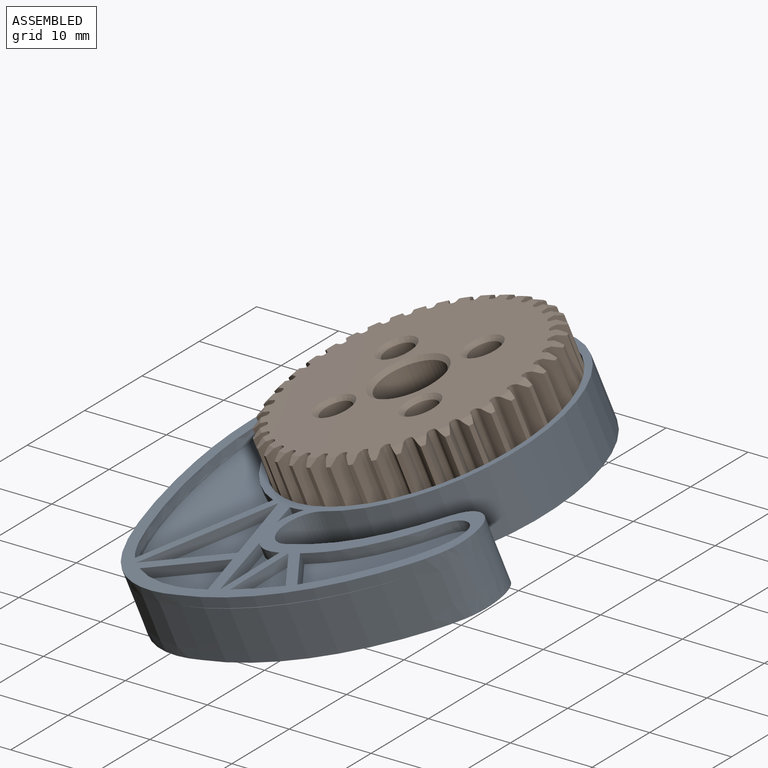
[diagram: assembled view]
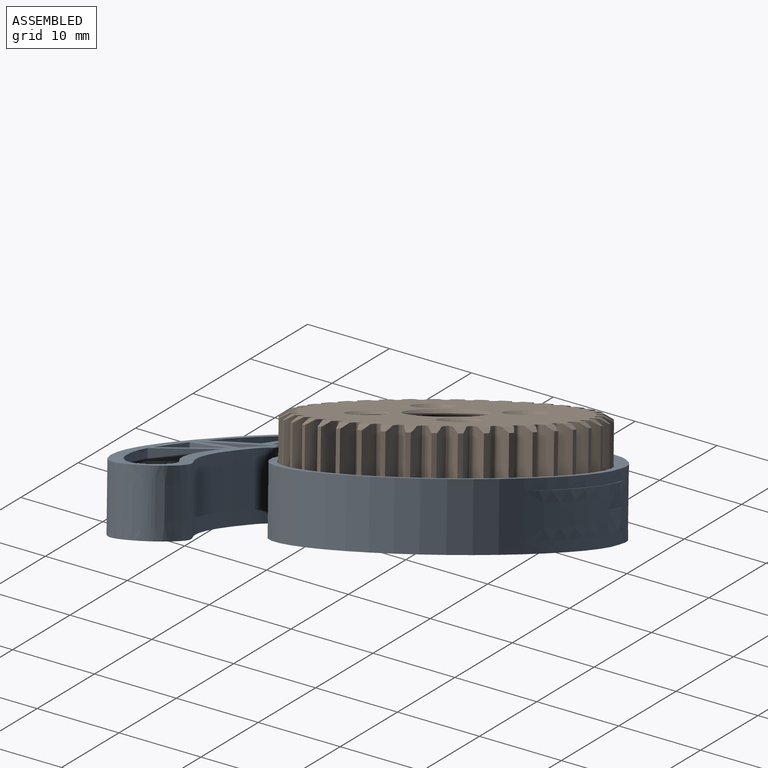
[diagram: assembled view, second angle]
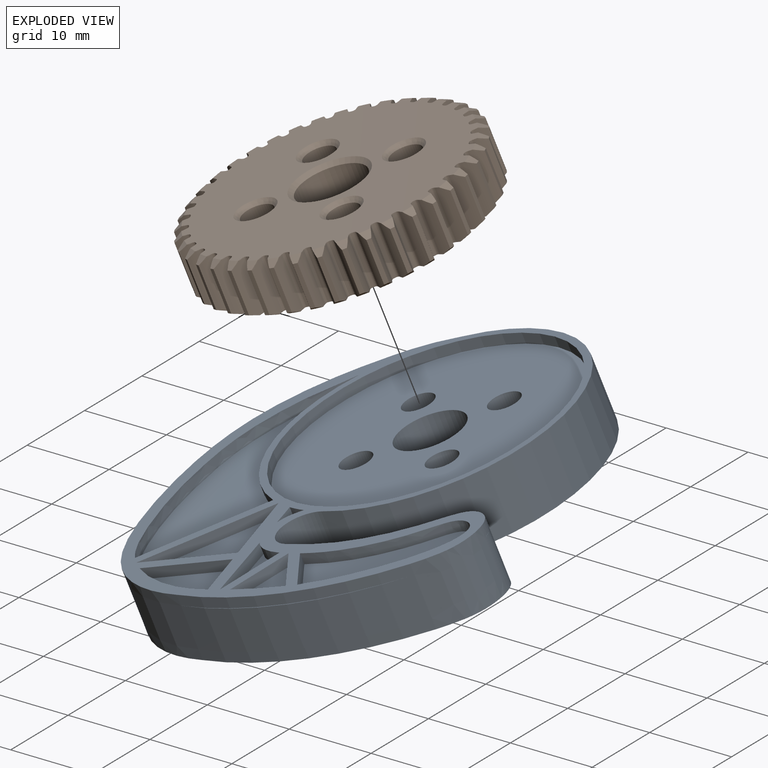
[diagram: exploded view]
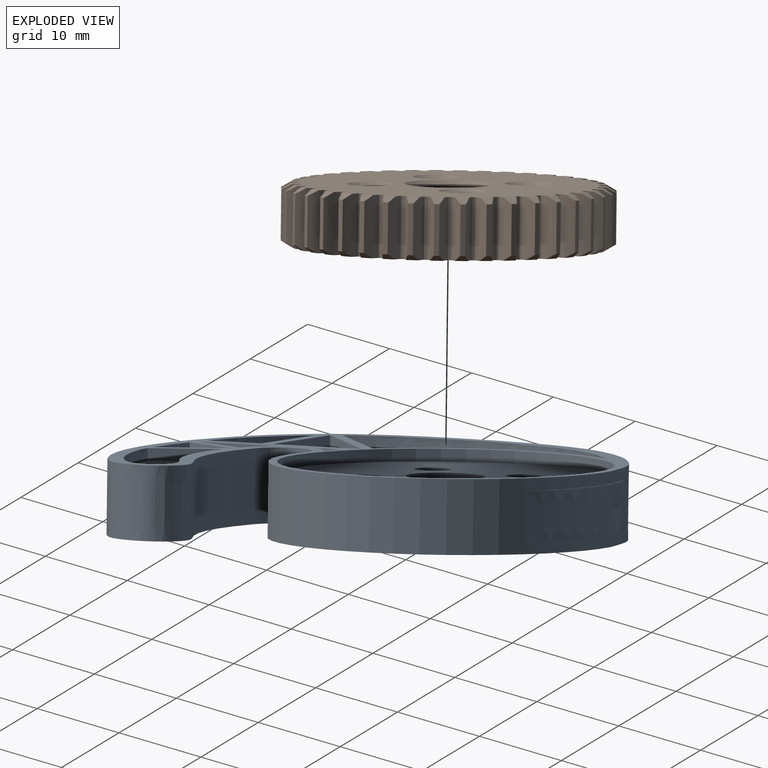
[diagram: exploded view, second angle]
ASSEMBLY  parts=2 mates=3
PART A: 94 faces, bbox 52.8x48.1x7.6 mm
  f0: extruded ~18.96x12.44mm, area 51.4mm2, adj f5,f40,f88
  f1: extruded ~6.91x1.27mm, area 8.8mm2, adj f4,f40,f68,f87
  f2: extruded ~18.96x12.44mm, area 51.4mm2, adj f7,f39,f85
  f3: extruded ~6.91x1.27mm, area 8.8mm2, adj f6,f39,f65,f86
  f4: plane 7.05x6.97mm, normal (0,0,-1), area 24mm2, adj f1,f68,f87
  f5: plane 19.16x12.62mm, normal (0,0,-1), area 105.2mm2, adj f0,f88
  f6: plane 7.05x6.97mm, normal (0,0,1), area 24mm2, adj f3,f65,f86
  f7: plane 19.16x12.62mm, normal (0,0,1), area 105.2mm2, adj f2,f85
  f8: extruded ~12.25x4.13mm, area 16.7mm2, adj f13,f40,f73,f74
  f9: extruded ~4.11x1.96mm, area 6mm2, adj f14,f40,f67,f75
  f10: extruded ~12.25x4.13mm, area 16.7mm2, adj f16,f39,f81,f82
  f11: extruded ~4.11x1.96mm, area 6mm2, adj f17,f39,f66,f83
  f12: plane 12.12x11.56mm, normal (0,0,-1), area 60.3mm2, adj f72,f77,f78
  f13: plane 12.34x5.93mm, normal (0,0,-1), area 42.7mm2, adj f8,f73,f74
  f14: plane 9.18x4.24mm, normal (0,0,-1), area 15.7mm2, adj f9,f67,f75
  f15: plane 12.12x11.56mm, normal (0,0,1), area 60.3mm2, adj f69,f79,f80
  f16: plane 12.34x5.93mm, normal (0,0,1), area 42.7mm2, adj f10,f81,f82
  f17: plane 9.18x4.24mm, normal (0,0,1), area 15.7mm2, adj f11,f66,f83
  f18: extruded ~35.53x7.47mm, area 48.8mm2, adj f20,f22,f40,f71
  f19: extruded ~35.53x7.47mm, area 48.8mm2, adj f21,f23,f39,f70
  f20: plane 35.63x14.46mm, normal (0,0,-1), area 215.8mm2, adj f18,f22,f71
  f21: plane 35.63x14.46mm, normal (0,0,1), area 215.8mm2, adj f19,f23,f70
  f22: cylinder r=17.78mm len=24.31mm, axis (0,0,-1), area 35.7mm2, adj f18,f20,f40,f71
  f23: cylinder r=17.78mm len=24.31mm, axis (0,0,-1), area 35.7mm2, adj f19,f21,f39,f70
  f24: extruded ~2.34x1.81mm, area 3.8mm2, adj f26,f32,f40,f76
  f25: extruded ~2.34x1.81mm, area 3.8mm2, adj f27,f37,f39,f84
  f26: plane 2.96x2.38mm, normal (0,0,-1), area 2.7mm2, adj f24,f32,f76
  f27: plane 2.96x2.38mm, normal (0,0,1), area 2.7mm2, adj f25,f37,f84
  f28: cylinder r=34.5mm len=26.65mm, axis (0,0,-1), area 142.7mm2, adj f29,f30,f34,f36
  f29: plane 26.65x6.58mm, normal (0,0,1), area 1.7mm2, adj f28,f35
  f30: plane 26.65x6.58mm, normal (0,0,-1), area 1.7mm2, adj f28,f31
  f31: cylinder r=35.56mm len=26.65mm, axis (0,0,-1), area 35.6mm2, adj f30,f34,f36,f40
  f32: cylinder r=17.78mm len=2.32mm, axis (0,0,-1), area 3mm2, adj f24,f26,f40,f76
  f33: cylinder r=16.89mm len=33.78mm, axis (0,0,-1), area 134.8mm2, adj f40,f64
  f34: extruded ~50.11x17.25mm, area 357.3mm2, adj f28,f31,f35,f39,f40,f50,f51,f52
  f35: cylinder r=35.56mm len=26.65mm, axis (0,0,-1), area 35.6mm2, adj f29,f34,f36,f39
  f36: extruded ~10.2x8.61mm, area 135.8mm2, adj f28,f31,f35,f39,f40,f42,f43,f44
  f37: cylinder r=17.78mm len=2.32mm, axis (0,0,-1), area 3mm2, adj f25,f27,f39,f84
  f38: cylinder r=16.89mm len=33.78mm, axis (0,0,-1), area 134.8mm2, adj f39,f63
  f39: plane 52.26x48.14mm, normal (0,0,1), area 385.7mm2, adj f2,f3,f10,f11,f19,f23,f25,f34
  f40: plane 52.26x48.14mm, normal (0,0,-1), area 385.7mm2, adj f0,f1,f8,f9,f18,f22,f24,f31
  f41: cylinder r=3.17mm len=7.62mm, axis (0,0,-1), area 76.7mm2, adj f39,f40,f42,f50
  f42: cylinder r=24.13mm len=14.53mm, axis (0,0,-1), area 115.9mm2, adj f36,f39,f40,f41
  f43: plane 1.02x0.31mm, normal (0,0,-1), area 0mm2, adj f36,f45
  f44: plane 1.02x0.31mm, normal (0,0,1), area 0mm2, adj f36,f45
  f45: extruded ~5.08x1mm, area 5.3mm2, adj f36,f43,f44
  f46: plane 1.41x0.52mm, normal (0,0,-1), area 0mm2, adj f36,f48
  f47: plane 1.41x0.52mm, normal (0,0,1), area 0mm2, adj f36,f48
  f48: extruded ~5.08x1.37mm, area 7.5mm2, adj f36,f46,f47
  f49: extruded ~5.08x0.15mm, area 0.9mm2, adj f36
  f50: cylinder r=17.78mm len=35.56mm, axis (0,0,-1), area 407mm2, adj f34,f39,f40,f41,f51,f52,f53
  f51: plane 17.96x3.41mm, normal (0,0,1), area 2mm2, adj f34,f50,f53
  f52: plane 17.96x3.41mm, normal (0,0,-1), area 2mm2, adj f34,f50,f53
  f53: extruded ~17.6x5.08mm, area 93.5mm2, adj f34,f50,f51,f52
  f54: plane 2.44x2.24mm, normal (0,0,-1), area 0mm2, adj f34,f56
  f55: plane 2.44x2.24mm, normal (0,0,1), area 0mm2, adj f34,f56
  f56: extruded ~5.08x2.42mm, area 16.7mm2, adj f34,f54,f55
  f57: plane 9.27x5.08mm, normal (0,0,-1), area 0.2mm2, adj f34,f59
  f58: plane 9.27x5.08mm, normal (0,0,1), area 0.2mm2, adj f34,f59
  f59: extruded ~9.01x5.08mm, area 52.3mm2, adj f34,f57,f58
  f60: plane 12.29x5.49mm, normal (0,0,-1), area 1.1mm2, adj f34,f62
  f61: plane 12.29x5.49mm, normal (0,0,1), area 1.1mm2, adj f34,f62
  f62: extruded ~11.8x5.08mm, area 66.3mm2, adj f34,f60,f61
  f63: plane 33.78x33.78mm, normal (0,0,1), area 802.8mm2, adj f38,f89,f90,f91,f92,f93
  f64: plane 33.78x33.78mm, normal (0,0,-1), area 802.8mm2, adj f33,f89,f90,f91,f92,f93
  f65: plane 7.02x2.48mm, normal (0.33,0.94,0), area 9.5mm2, adj f3,f6,f39,f86
  f66: plane 7.16x2.53mm, normal (-0.33,-0.94,0), area 9.6mm2, adj f11,f17,f39,f83
  f67: plane 7.16x2.53mm, normal (-0.33,-0.94,0), area 9.6mm2, adj f9,f14,f40,f75
  f68: plane 7.02x2.48mm, normal (0.33,0.94,0), area 9.5mm2, adj f1,f4,f40,f87
  f69: plane 11.56x10.23mm, normal (0.66,0.75,0), area 19.6mm2, adj f15,f39,f79,f80
  f70: plane 11.22x9.93mm, normal (-0.66,-0.75,0), area 19mm2, adj f19,f21,f23,f39
  f71: plane 11.22x9.93mm, normal (-0.66,-0.75,0), area 19mm2, adj f18,f20,f22,f40
  f72: plane 11.56x10.23mm, normal (0.66,0.75,0), area 19.6mm2, adj f12,f40,f77,f78
  f73: plane 5.89x1.27mm, normal (0.19,-0.98,0), area 7.6mm2, adj f8,f13,f40,f74
  f74: plane 11.1x1.75mm, normal (0.99,0.16,0), area 14.3mm2, adj f8,f13,f40,f73
  f75: plane 9.12x1.58mm, normal (-0.17,0.99,0), area 11.8mm2, adj f9,f14,f40,f67
  f76: plane 2.9x1.27mm, normal (-0.17,0.99,0), area 3.7mm2, adj f24,f26,f32,f40
  f77: plane 9.65x1.89mm, normal (0.19,-0.98,0), area 12.5mm2, adj f12,f40,f72,f78
  f78: plane 12.12x1.91mm, normal (-0.99,-0.16,0), area 15.6mm2, adj f12,f40,f72,f77
  f79: plane 9.65x1.89mm, normal (0.19,-0.98,0), area 12.5mm2, adj f15,f39,f69,f80
  f80: plane 12.12x1.91mm, normal (-0.99,-0.16,0), area 15.6mm2, adj f15,f39,f69,f79
  f81: plane 11.1x1.75mm, normal (0.99,0.16,0), area 14.3mm2, adj f10,f16,f39,f82
  f82: plane 5.89x1.27mm, normal (0.19,-0.98,0), area 7.6mm2, adj f10,f16,f39,f81
  f83: plane 9.12x1.58mm, normal (-0.17,0.99,0), area 11.8mm2, adj f11,f17,f39,f66
  f84: plane 2.9x1.27mm, normal (-0.17,0.99,0), area 3.7mm2, adj f25,f27,f37,f39
  f85: plane 6.06x4.23mm, normal (-0.57,0.82,0), area 9.4mm2, adj f2,f7,f39
  f86: plane 6.36x4.43mm, normal (0.57,-0.82,0), area 9.8mm2, adj f3,f6,f39,f65
  f87: plane 6.36x4.43mm, normal (0.57,-0.82,0), area 9.8mm2, adj f1,f4,f40,f68
  f88: plane 6.06x4.23mm, normal (-0.57,0.82,0), area 9.4mm2, adj f0,f5,f40
  f89: cylinder r=1.85mm len=5.08mm, axis (0,0,-1), area 59.2mm2, adj f63,f64
  f90: cylinder r=1.85mm len=5.08mm, axis (0,0,-1), area 59.2mm2, adj f63,f64
  f91: cylinder r=4mm len=8mm, axis (0,0,-1), area 127.7mm2, adj f63,f64
  f92: cylinder r=1.85mm len=5.08mm, axis (0,0,-1), area 59.2mm2, adj f63,f64
  f93: cylinder r=1.85mm len=5.08mm, axis (0,0,-1), area 59.2mm2, adj f63,f64
PART B: 177 faces, bbox 6.4x33.6x33.6 mm
  f0: cone r=2.35mm half-angle=45deg, axis (-1,0,0), area 9.3mm2, adj f11,f16
  f1: cone r=1.85mm half-angle=45deg, axis (1,0,0), area 9.3mm2, adj f11,f15
  f2: cone r=4mm half-angle=45deg, axis (-1,0,0), area 18.9mm2, adj f14,f16
  f3: cone r=4mm half-angle=45deg, axis (1,0,0), area 18.9mm2, adj f14,f15
  f4: cone r=2.35mm half-angle=45deg, axis (-1,0,0), area 9.3mm2, adj f10,f16
  f5: cone r=1.85mm half-angle=45deg, axis (1,0,0), area 9.3mm2, adj f10,f15
  f6: cone r=2.35mm half-angle=45deg, axis (-1,0,0), area 9.3mm2, adj f13,f16
  f7: cone r=1.85mm half-angle=45deg, axis (1,0,0), area 9.3mm2, adj f13,f15
  f8: cone r=2.35mm half-angle=45deg, axis (-1,0,0), area 9.3mm2, adj f12,f16
  f9: cone r=1.85mm half-angle=45deg, axis (1,0,0), area 9.3mm2, adj f12,f15
  f10: cylinder r=1.85mm len=5.35mm, axis (1,0,0), area 62.2mm2, adj f4,f5
  f11: cylinder r=1.85mm len=5.35mm, axis (1,0,0), area 62.2mm2, adj f0,f1
  f12: cylinder r=1.85mm len=5.35mm, axis (1,0,0), area 62.2mm2, adj f8,f9
  f13: cylinder r=1.85mm len=5.35mm, axis (1,0,0), area 62.2mm2, adj f6,f7
  f14: cylinder r=4mm len=8mm, axis (-1,0,0), area 134.5mm2, adj f2,f3
  f15: plane 31.63x31.63mm, normal (1,0,0), area 608.9mm2, adj f1,f3,f5,f7,f9,f17,f20,f23
  f16: plane 31.63x31.63mm, normal (-1,0,0), area 637.8mm2, adj f0,f2,f4,f6,f8,f19,f22,f25
  f17: cone r=15.8mm half-angle=60deg, axis (-1,0,0), area 1.1mm2, adj f15,f134,f137,f176
  f18: cylinder r=16.8mm len=5.2mm, axis (-1,0,0), area 2.8mm2, adj f19,f20,f175,f176
  f19: cone r=15.8mm half-angle=60deg, axis (1,0,0), area 1.1mm2, adj f16,f18,f175,f176
  f20: cone r=15.8mm half-angle=60deg, axis (-1,0,0), area 1.1mm2, adj f15,f18,f175,f176
  f21: cylinder r=16.8mm len=5.2mm, axis (-1,0,0), area 2.8mm2, adj f22,f23,f174,f175
  f22: cone r=15.8mm half-angle=60deg, axis (1,0,0), area 1.1mm2, adj f16,f21,f174,f175
  f23: cone r=15.8mm half-angle=60deg, axis (-1,0,0), area 1.1mm2, adj f15,f21,f174,f175
  f24: cylinder r=16.8mm len=5.2mm, axis (-1,0,0), area 2.8mm2, adj f25,f26,f173,f174
  f25: cone r=15.8mm half-angle=60deg, axis (1,0,0), area 1.1mm2, adj f16,f24,f173,f174
  f26: cone r=15.8mm half-angle=60deg, axis (-1,0,0), area 1.1mm2, adj f15,f24,f173,f174
  f27: cylinder r=16.8mm len=5.2mm, axis (-1,0,0), area 2.8mm2, adj f28,f29,f172,f173
  f28: cone r=15.8mm half-angle=60deg, axis (1,0,0), area 1.1mm2, adj f16,f27,f172,f173
  f29: cone r=15.8mm half-angle=60deg, axis (-1,0,0), area 1.1mm2, adj f15,f27,f172,f173
  f30: cylinder r=16.8mm len=5.2mm, axis (-1,0,0), area 2.8mm2, adj f31,f32,f171,f172
  f31: cone r=15.8mm half-angle=60deg, axis (1,0,0), area 1.1mm2, adj f16,f30,f171,f172
  f32: cone r=15.8mm half-angle=60deg, axis (-1,0,0), area 1.1mm2, adj f15,f30,f171,f172
  f33: cylinder r=16.8mm len=5.2mm, axis (-1,0,0), area 2.8mm2, adj f34,f35,f170,f171
  f34: cone r=15.8mm half-angle=60deg, axis (1,0,0), area 1.1mm2, adj f16,f33,f170,f171
  f35: cone r=15.8mm half-angle=60deg, axis (-1,0,0), area 1.1mm2, adj f15,f33,f170,f171
  f36: cylinder r=16.8mm len=5.2mm, axis (-1,0,0), area 2.8mm2, adj f37,f38,f169,f170
  f37: cone r=15.8mm half-angle=60deg, axis (1,0,0), area 1.1mm2, adj f16,f36,f169,f170
  f38: cone r=15.8mm half-angle=60deg, axis (-1,0,0), area 1.1mm2, adj f15,f36,f169,f170
  f39: cylinder r=16.8mm len=5.2mm, axis (-1,0,0), area 2.8mm2, adj f40,f41,f168,f169
  f40: cone r=15.8mm half-angle=60deg, axis (1,0,0), area 1.1mm2, adj f16,f39,f168,f169
  f41: cone r=15.8mm half-angle=60deg, axis (-1,0,0), area 1.1mm2, adj f15,f39,f168,f169
  f42: cylinder r=16.8mm len=5.2mm, axis (-1,0,0), area 2.8mm2, adj f43,f44,f167,f168
  f43: cone r=15.8mm half-angle=60deg, axis (1,0,0), area 1.1mm2, adj f16,f42,f167,f168
  f44: cone r=15.8mm half-angle=60deg, axis (-1,0,0), area 1.1mm2, adj f15,f42,f167,f168
  f45: cylinder r=16.8mm len=5.2mm, axis (-1,0,0), area 2.8mm2, adj f46,f47,f166,f167
  f46: cone r=15.8mm half-angle=60deg, axis (1,0,0), area 1.1mm2, adj f16,f45,f166,f167
  f47: cone r=15.8mm half-angle=60deg, axis (-1,0,0), area 1.1mm2, adj f15,f45,f166,f167
  f48: cylinder r=16.8mm len=5.2mm, axis (-1,0,0), area 2.8mm2, adj f49,f50,f165,f166
  f49: cone r=15.8mm half-angle=60deg, axis (1,0,0), area 1.1mm2, adj f16,f48,f165,f166
  f50: cone r=15.8mm half-angle=60deg, axis (-1,0,0), area 1.1mm2, adj f15,f48,f165,f166
  f51: cylinder r=16.8mm len=5.2mm, axis (-1,0,0), area 2.8mm2, adj f52,f53,f164,f165
  f52: cone r=15.8mm half-angle=60deg, axis (1,0,0), area 1.1mm2, adj f16,f51,f164,f165
  f53: cone r=15.8mm half-angle=60deg, axis (-1,0,0), area 1.1mm2, adj f15,f51,f164,f165
  f54: cylinder r=16.8mm len=5.2mm, axis (-1,0,0), area 2.8mm2, adj f55,f56,f163,f164
  f55: cone r=15.8mm half-angle=60deg, axis (1,0,0), area 1.1mm2, adj f16,f54,f163,f164
  f56: cone r=15.8mm half-angle=60deg, axis (-1,0,0), area 1.1mm2, adj f15,f54,f163,f164
  f57: cylinder r=16.8mm len=5.2mm, axis (-1,0,0), area 2.8mm2, adj f58,f59,f162,f163
  f58: cone r=15.8mm half-angle=60deg, axis (1,0,0), area 1.1mm2, adj f16,f57,f162,f163
  f59: cone r=15.8mm half-angle=60deg, axis (-1,0,0), area 1.1mm2, adj f15,f57,f162,f163
  f60: cylinder r=16.8mm len=5.2mm, axis (-1,0,0), area 2.8mm2, adj f61,f62,f161,f162
  f61: cone r=15.8mm half-angle=60deg, axis (1,0,0), area 1.1mm2, adj f16,f60,f161,f162
  f62: cone r=15.8mm half-angle=60deg, axis (-1,0,0), area 1.1mm2, adj f15,f60,f161,f162
  f63: cylinder r=16.8mm len=5.2mm, axis (-1,0,0), area 2.8mm2, adj f64,f65,f160,f161
  f64: cone r=15.8mm half-angle=60deg, axis (1,0,0), area 1.1mm2, adj f16,f63,f160,f161
  f65: cone r=15.8mm half-angle=60deg, axis (-1,0,0), area 1.1mm2, adj f15,f63,f160,f161
  f66: cylinder r=16.8mm len=5.2mm, axis (-1,0,0), area 2.8mm2, adj f67,f68,f159,f160
  f67: cone r=15.8mm half-angle=60deg, axis (1,0,0), area 1.1mm2, adj f16,f66,f159,f160
  f68: cone r=15.8mm half-angle=60deg, axis (-1,0,0), area 1.1mm2, adj f15,f66,f159,f160
  f69: cylinder r=16.8mm len=5.2mm, axis (-1,0,0), area 2.8mm2, adj f70,f71,f158,f159
  f70: cone r=15.8mm half-angle=60deg, axis (1,0,0), area 1.1mm2, adj f16,f69,f158,f159
  f71: cone r=15.8mm half-angle=60deg, axis (-1,0,0), area 1.1mm2, adj f15,f69,f158,f159
  f72: cylinder r=16.8mm len=5.2mm, axis (-1,0,0), area 2.8mm2, adj f73,f74,f157,f158
  f73: cone r=15.8mm half-angle=60deg, axis (1,0,0), area 1.1mm2, adj f16,f72,f157,f158
  f74: cone r=15.8mm half-angle=60deg, axis (-1,0,0), area 1.1mm2, adj f15,f72,f157,f158
  f75: cylinder r=16.8mm len=5.2mm, axis (-1,0,0), area 2.8mm2, adj f76,f77,f156,f157
  f76: cone r=15.8mm half-angle=60deg, axis (1,0,0), area 1.1mm2, adj f16,f75,f156,f157
  f77: cone r=15.8mm half-angle=60deg, axis (-1,0,0), area 1.1mm2, adj f15,f75,f156,f157
  f78: cylinder r=16.8mm len=5.2mm, axis (-1,0,0), area 2.8mm2, adj f79,f80,f155,f156
  f79: cone r=15.8mm half-angle=60deg, axis (1,0,0), area 1.1mm2, adj f16,f78,f155,f156
  f80: cone r=15.8mm half-angle=60deg, axis (-1,0,0), area 1.1mm2, adj f15,f78,f155,f156
  f81: cylinder r=16.8mm len=5.2mm, axis (-1,0,0), area 2.8mm2, adj f82,f83,f154,f155
  f82: cone r=15.8mm half-angle=60deg, axis (1,0,0), area 1.1mm2, adj f16,f81,f154,f155
  f83: cone r=15.8mm half-angle=60deg, axis (-1,0,0), area 1.1mm2, adj f15,f81,f154,f155
  f84: cylinder r=16.8mm len=5.2mm, axis (-1,0,0), area 2.8mm2, adj f85,f86,f153,f154
  f85: cone r=15.8mm half-angle=60deg, axis (1,0,0), area 1.1mm2, adj f16,f84,f153,f154
  f86: cone r=15.8mm half-angle=60deg, axis (-1,0,0), area 1.1mm2, adj f15,f84,f153,f154
  f87: cylinder r=16.8mm len=5.2mm, axis (-1,0,0), area 2.8mm2, adj f88,f89,f152,f153
  f88: cone r=15.8mm half-angle=60deg, axis (1,0,0), area 1.1mm2, adj f16,f87,f152,f153
  f89: cone r=15.8mm half-angle=60deg, axis (-1,0,0), area 1.1mm2, adj f15,f87,f152,f153
  f90: cylinder r=16.8mm len=5.2mm, axis (-1,0,0), area 2.8mm2, adj f91,f92,f151,f152
  f91: cone r=15.8mm half-angle=60deg, axis (1,0,0), area 1.1mm2, adj f16,f90,f151,f152
  f92: cone r=15.8mm half-angle=60deg, axis (-1,0,0), area 1.1mm2, adj f15,f90,f151,f152
  f93: cylinder r=16.8mm len=5.2mm, axis (-1,0,0), area 2.8mm2, adj f94,f95,f150,f151
  f94: cone r=15.8mm half-angle=60deg, axis (1,0,0), area 1.1mm2, adj f16,f93,f150,f151
  f95: cone r=15.8mm half-angle=60deg, axis (-1,0,0), area 1.1mm2, adj f15,f93,f150,f151
  f96: cylinder r=16.8mm len=5.2mm, axis (-1,0,0), area 2.8mm2, adj f97,f98,f149,f150
  f97: cone r=15.8mm half-angle=60deg, axis (1,0,0), area 1.1mm2, adj f16,f96,f149,f150
  f98: cone r=15.8mm half-angle=60deg, axis (-1,0,0), area 1.1mm2, adj f15,f96,f149,f150
  f99: cylinder r=16.8mm len=5.2mm, axis (-1,0,0), area 2.8mm2, adj f100,f101,f148,f149
  f100: cone r=15.8mm half-angle=60deg, axis (1,0,0), area 1.1mm2, adj f16,f99,f148,f149
  f101: cone r=15.8mm half-angle=60deg, axis (-1,0,0), area 1.1mm2, adj f15,f99,f148,f149
  f102: cylinder r=16.8mm len=5.2mm, axis (-1,0,0), area 2.8mm2, adj f103,f104,f147,f148
  f103: cone r=15.8mm half-angle=60deg, axis (1,0,0), area 1.1mm2, adj f16,f102,f147,f148
  f104: cone r=15.8mm half-angle=60deg, axis (-1,0,0), area 1.1mm2, adj f15,f102,f147,f148
  f105: cylinder r=16.8mm len=5.2mm, axis (-1,0,0), area 2.8mm2, adj f106,f107,f146,f147
  f106: cone r=15.8mm half-angle=60deg, axis (1,0,0), area 1.1mm2, adj f16,f105,f146,f147
  f107: cone r=15.8mm half-angle=60deg, axis (-1,0,0), area 1.1mm2, adj f15,f105,f146,f147
  f108: cylinder r=16.8mm len=5.2mm, axis (-1,0,0), area 2.8mm2, adj f109,f110,f145,f146
  f109: cone r=15.8mm half-angle=60deg, axis (1,0,0), area 1.1mm2, adj f16,f108,f145,f146
  f110: cone r=15.8mm half-angle=60deg, axis (-1,0,0), area 1.1mm2, adj f15,f108,f145,f146
  f111: cylinder r=16.8mm len=5.2mm, axis (-1,0,0), area 2.8mm2, adj f112,f113,f144,f145
  f112: cone r=15.8mm half-angle=60deg, axis (1,0,0), area 1.1mm2, adj f16,f111,f144,f145
  f113: cone r=15.8mm half-angle=60deg, axis (-1,0,0), area 1.1mm2, adj f15,f111,f144,f145
  f114: cylinder r=16.8mm len=5.2mm, axis (-1,0,0), area 2.8mm2, adj f115,f116,f143,f144
  f115: cone r=15.8mm half-angle=60deg, axis (1,0,0), area 1.1mm2, adj f16,f114,f143,f144
  f116: cone r=15.8mm half-angle=60deg, axis (-1,0,0), area 1.1mm2, adj f15,f114,f143,f144
  f117: cylinder r=16.8mm len=5.2mm, axis (-1,0,0), area 2.8mm2, adj f118,f119,f142,f143
  f118: cone r=15.8mm half-angle=60deg, axis (1,0,0), area 1.1mm2, adj f16,f117,f142,f143
  f119: cone r=15.8mm half-angle=60deg, axis (-1,0,0), area 1.1mm2, adj f15,f117,f142,f143
  f120: cylinder r=16.8mm len=5.2mm, axis (-1,0,0), area 2.8mm2, adj f121,f122,f141,f142
  f121: cone r=15.8mm half-angle=60deg, axis (1,0,0), area 1.1mm2, adj f16,f120,f141,f142
  f122: cone r=15.8mm half-angle=60deg, axis (-1,0,0), area 1.1mm2, adj f15,f120,f141,f142
  f123: cylinder r=16.8mm len=5.2mm, axis (-1,0,0), area 2.8mm2, adj f124,f125,f140,f141
  f124: cone r=15.8mm half-angle=60deg, axis (1,0,0), area 1.1mm2, adj f16,f123,f140,f141
  f125: cone r=15.8mm half-angle=60deg, axis (-1,0,0), area 1.1mm2, adj f15,f123,f140,f141
  f126: cylinder r=16.8mm len=5.2mm, axis (-1,0,0), area 2.8mm2, adj f127,f128,f139,f140
  f127: cone r=15.8mm half-angle=60deg, axis (1,0,0), area 1.1mm2, adj f16,f126,f139,f140
  f128: cone r=15.8mm half-angle=60deg, axis (-1,0,0), area 1.1mm2, adj f15,f126,f139,f140
  f129: cylinder r=16.8mm len=5.2mm, axis (-1,0,0), area 2.8mm2, adj f130,f132,f138,f139
  f130: cone r=15.8mm half-angle=60deg, axis (1,0,0), area 1.1mm2, adj f16,f129,f138,f139
  f131: cylinder r=16.8mm len=5.2mm, axis (-1,0,0), area 2.8mm2, adj f133,f135,f137,f138
  f132: cone r=15.8mm half-angle=60deg, axis (-1,0,0), area 1.1mm2, adj f15,f129,f138,f139
  f133: cone r=15.8mm half-angle=60deg, axis (1,0,0), area 1.1mm2, adj f16,f131,f137,f138
  f134: cylinder r=16.8mm len=5.2mm, axis (-1,0,0), area 2.8mm2, adj f17,f136,f137,f176
  f135: cone r=15.8mm half-angle=60deg, axis (-1,0,0), area 1.1mm2, adj f15,f131,f137,f138
  f136: cone r=15.8mm half-angle=60deg, axis (1,0,0), area 1.1mm2, adj f16,f134,f137,f176
  f137: extruded ~6.35x2.1mm, area 26.7mm2, adj f15,f16,f17,f131,f133,f134,f135,f136
  f138: extruded ~6.35x2.08mm, area 26.7mm2, adj f15,f16,f129,f130,f131,f132,f133,f135
  f139: extruded ~6.35x2.06mm, area 26.7mm2, adj f15,f16,f126,f127,f128,f129,f130,f132
  f140: extruded ~6.35x2.15mm, area 26.7mm2, adj f15,f16,f123,f124,f125,f126,f127,f128
  f141: extruded ~6.35x2.18mm, area 26.7mm2, adj f15,f16,f120,f121,f122,f123,f124,f125
  f142: extruded ~6.35x2.16mm, area 26.7mm2, adj f15,f16,f117,f118,f119,f120,f121,f122
  f143: extruded ~6.35x2.18mm, area 26.7mm2, adj f15,f16,f114,f115,f116,f117,f118,f119
  f144: extruded ~6.35x2.15mm, area 26.7mm2, adj f15,f16,f111,f112,f113,f114,f115,f116
  f145: extruded ~6.35x2.06mm, area 26.7mm2, adj f15,f16,f108,f109,f110,f111,f112,f113
  f146: extruded ~6.35x2.08mm, area 26.7mm2, adj f15,f16,f105,f106,f107,f108,f109,f110
  f147: extruded ~6.35x2.1mm, area 26.7mm2, adj f15,f16,f102,f103,f104,f105,f106,f107
  f148: extruded ~6.35x2.08mm, area 26.7mm2, adj f15,f16,f99,f100,f101,f102,f103,f104
  f149: extruded ~6.35x2.06mm, area 26.7mm2, adj f15,f16,f96,f97,f98,f99,f100,f101
  f150: extruded ~6.35x2.15mm, area 26.7mm2, adj f15,f16,f93,f94,f95,f96,f97,f98
  f151: extruded ~6.35x2.18mm, area 26.7mm2, adj f15,f16,f90,f91,f92,f93,f94,f95
  f152: extruded ~6.35x2.16mm, area 26.7mm2, adj f15,f16,f87,f88,f89,f90,f91,f92
  f153: extruded ~6.35x2.18mm, area 26.7mm2, adj f15,f16,f84,f85,f86,f87,f88,f89
  f154: extruded ~6.35x2.15mm, area 26.7mm2, adj f15,f16,f81,f82,f83,f84,f85,f86
  f155: extruded ~6.35x2.06mm, area 26.7mm2, adj f15,f16,f78,f79,f80,f81,f82,f83
  f156: extruded ~6.35x2.08mm, area 26.7mm2, adj f15,f16,f75,f76,f77,f78,f79,f80
  f157: extruded ~6.35x2.1mm, area 26.7mm2, adj f15,f16,f72,f73,f74,f75,f76,f77
  f158: extruded ~6.35x2.08mm, area 26.7mm2, adj f15,f16,f69,f70,f71,f72,f73,f74
  f159: extruded ~6.35x2.06mm, area 26.7mm2, adj f15,f16,f66,f67,f68,f69,f70,f71
  f160: extruded ~6.35x2.15mm, area 26.7mm2, adj f15,f16,f63,f64,f65,f66,f67,f68
  f161: extruded ~6.35x2.18mm, area 26.7mm2, adj f15,f16,f60,f61,f62,f63,f64,f65
  f162: extruded ~6.35x2.16mm, area 26.7mm2, adj f15,f16,f57,f58,f59,f60,f61,f62
  f163: extruded ~6.35x2.18mm, area 26.7mm2, adj f15,f16,f54,f55,f56,f57,f58,f59
  f164: extruded ~6.35x2.15mm, area 26.7mm2, adj f15,f16,f51,f52,f53,f54,f55,f56
  f165: extruded ~6.35x2.06mm, area 26.7mm2, adj f15,f16,f48,f49,f50,f51,f52,f53
  f166: extruded ~6.35x2.08mm, area 26.7mm2, adj f15,f16,f45,f46,f47,f48,f49,f50
  f167: extruded ~6.35x2.1mm, area 26.7mm2, adj f15,f16,f42,f43,f44,f45,f46,f47
  f168: extruded ~6.35x2.08mm, area 26.7mm2, adj f15,f16,f39,f40,f41,f42,f43,f44
  f169: extruded ~6.35x2.06mm, area 26.7mm2, adj f15,f16,f36,f37,f38,f39,f40,f41
  f170: extruded ~6.35x2.15mm, area 26.7mm2, adj f15,f16,f33,f34,f35,f36,f37,f38
  f171: extruded ~6.35x2.18mm, area 26.7mm2, adj f15,f16,f30,f31,f32,f33,f34,f35
  f172: extruded ~6.35x2.16mm, area 26.7mm2, adj f15,f16,f27,f28,f29,f30,f31,f32
  f173: extruded ~6.35x2.18mm, area 26.7mm2, adj f15,f16,f24,f25,f26,f27,f28,f29
  f174: extruded ~6.35x2.15mm, area 26.7mm2, adj f15,f16,f21,f22,f23,f24,f25,f26
  f175: extruded ~6.35x2.06mm, area 26.7mm2, adj f15,f16,f18,f19,f20,f21,f22,f23
  f176: extruded ~6.35x2.08mm, area 26.7mm2, adj f15,f16,f17,f18,f19,f20,f134,f136
PLACE A rot(axis=(0.23,-0.05,-0.97),93.7deg) t=(-75.26,5.12,26.63)mm
PLACE B rot(axis=(-0.37,0.82,0.44),80.1deg) t=(-76.54,0.08,14.92)mm
MATE cylindrical B.f8 <-> A.f93  axis (-0.29,-0.19,0.94) through (-72.9,-2.7,37.43)mm
MATE planar A.f33 <-> B.f15  axis (-0.29,-0.19,0.94) through (-76.72,4.17,31.4)mm
MATE revolute A.f33 <-> B.f2  axis (-0.29,-0.19,0.94) through (-76.72,4.17,31.4)mm
